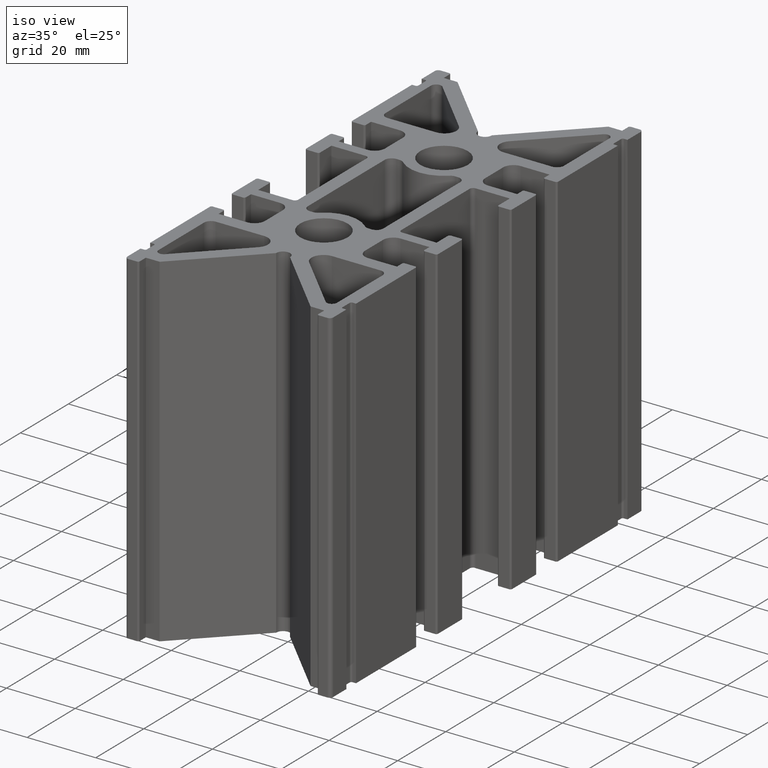
[diagram: clean part render]
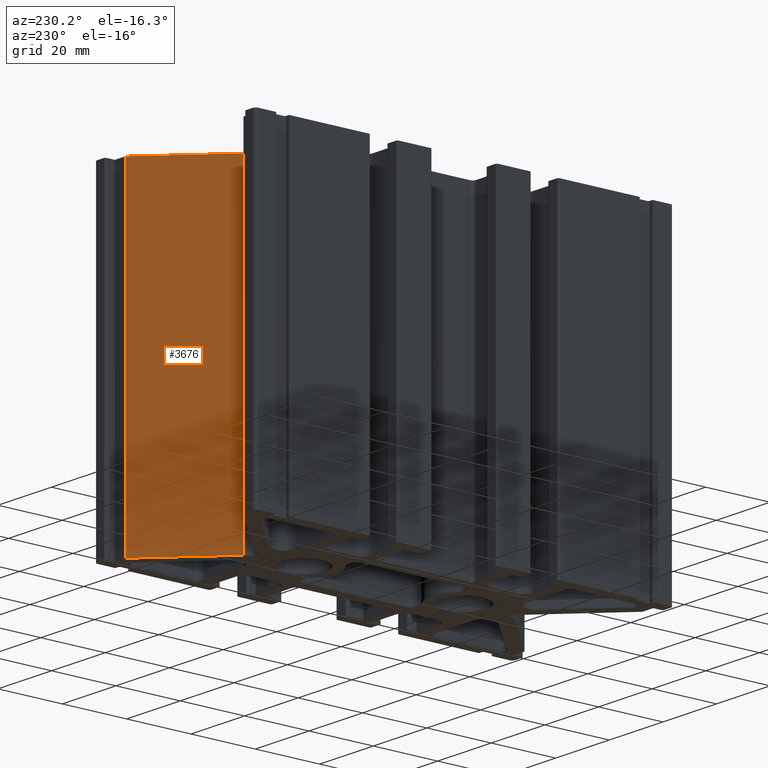
[diagram: tour spotlight — one face highlighted and labeled with its STEP entity id]
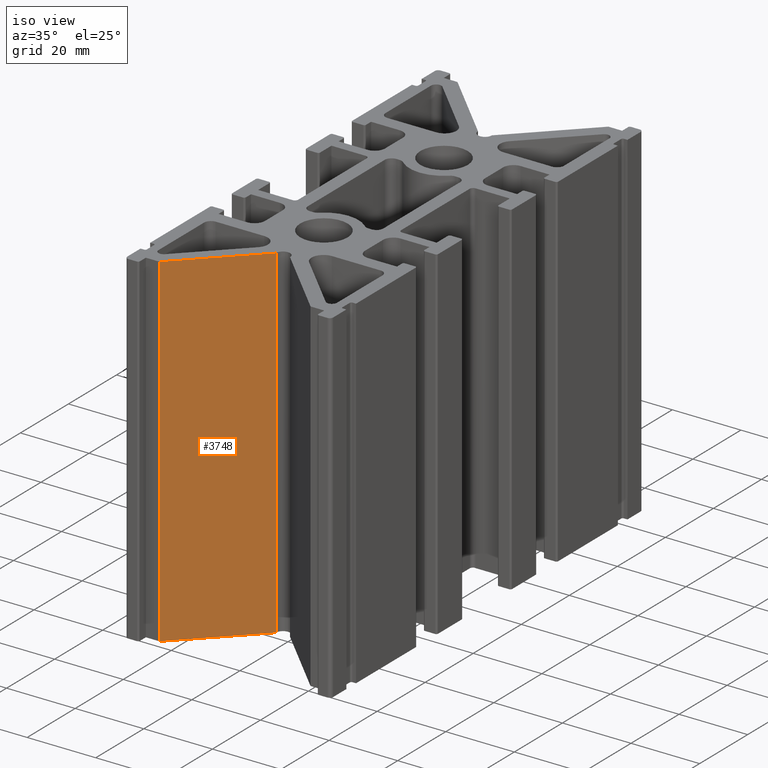
[diagram: tour spotlight — one face highlighted and labeled with its STEP entity id]
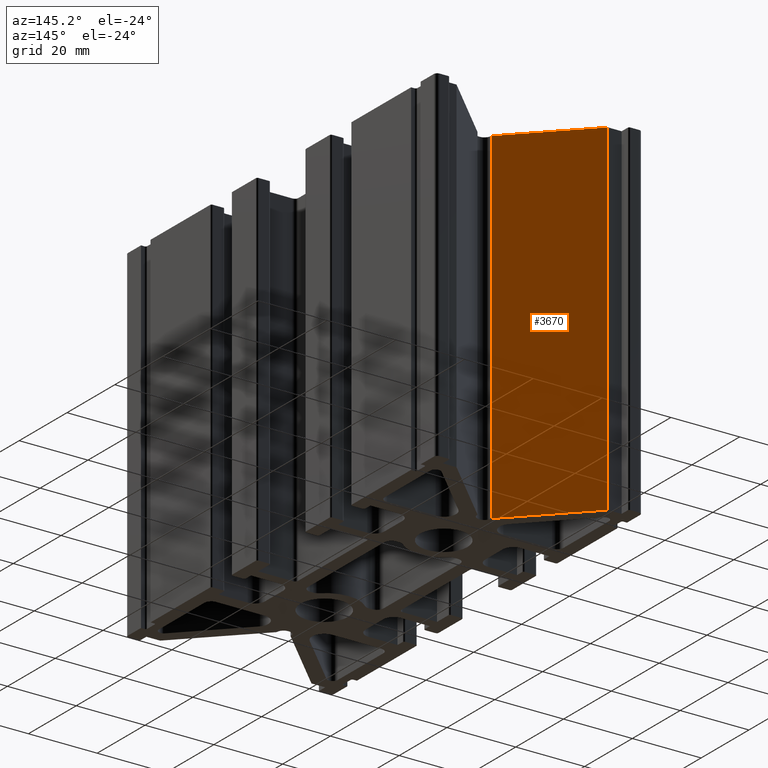
[diagram: tour spotlight — one face highlighted and labeled with its STEP entity id]
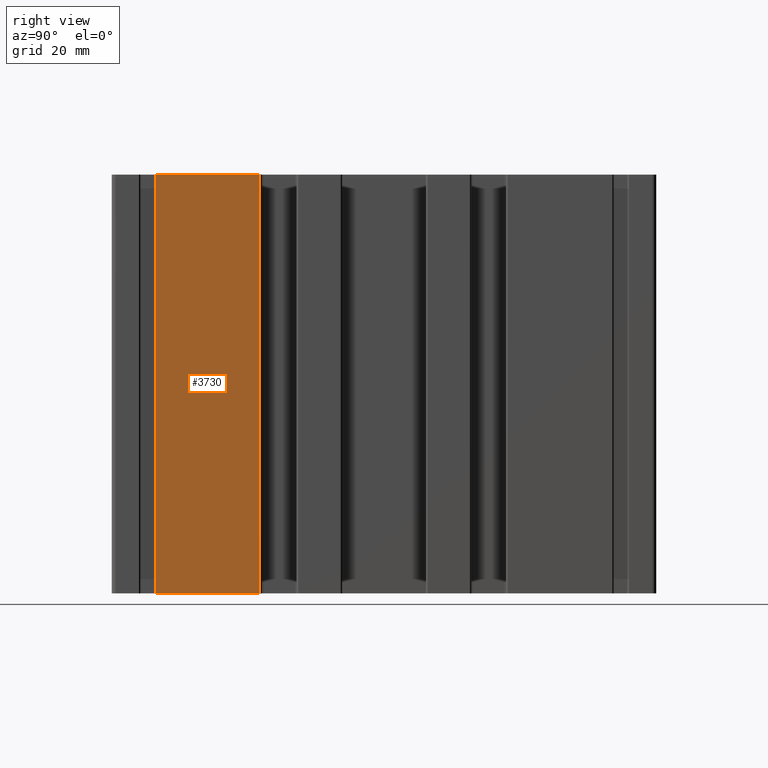
[diagram: tour spotlight — one face highlighted and labeled with its STEP entity id]
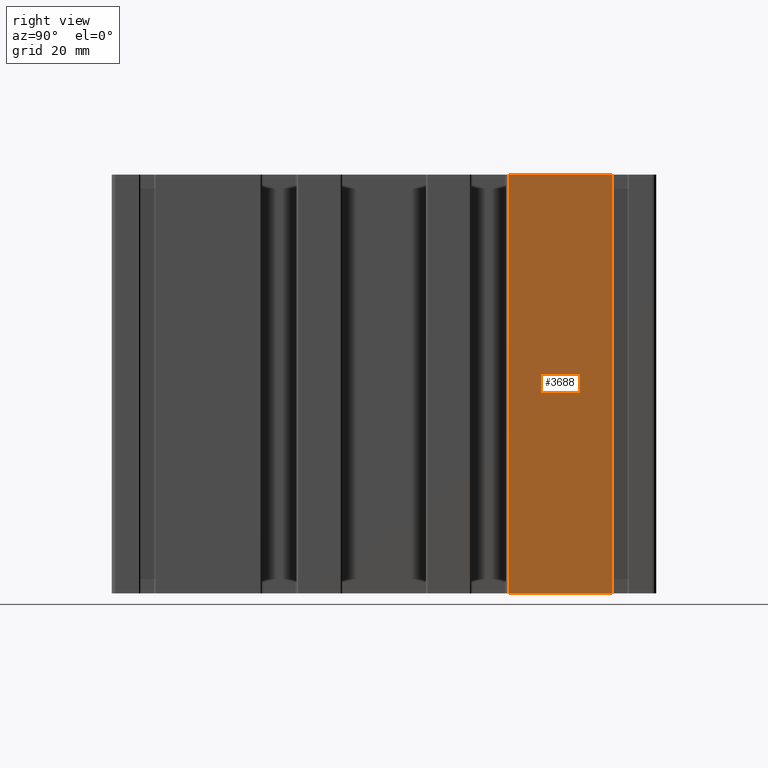
[diagram: tour spotlight — one face highlighted and labeled with its STEP entity id]
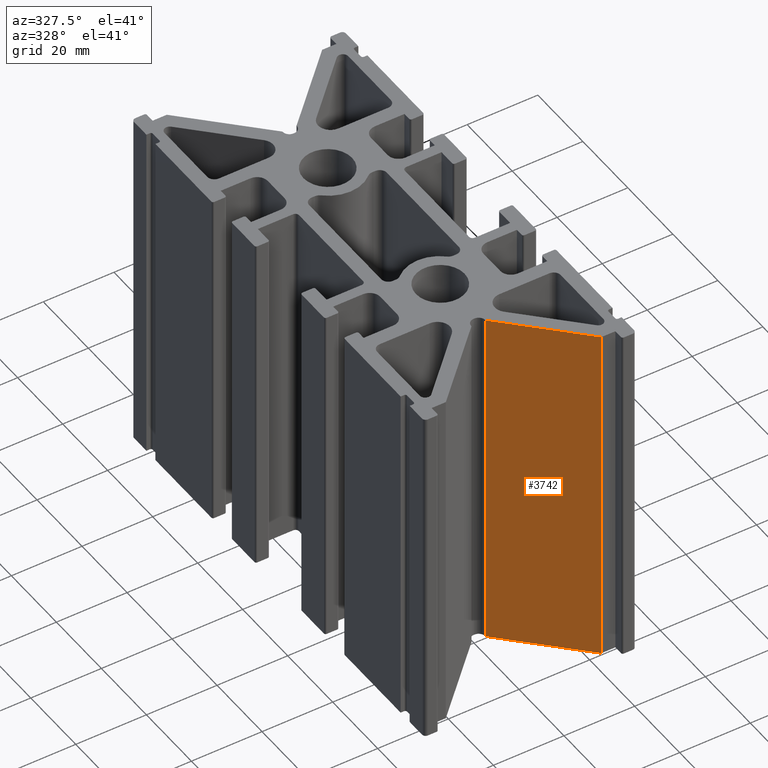
[diagram: tour spotlight — one face highlighted and labeled with its STEP entity id]
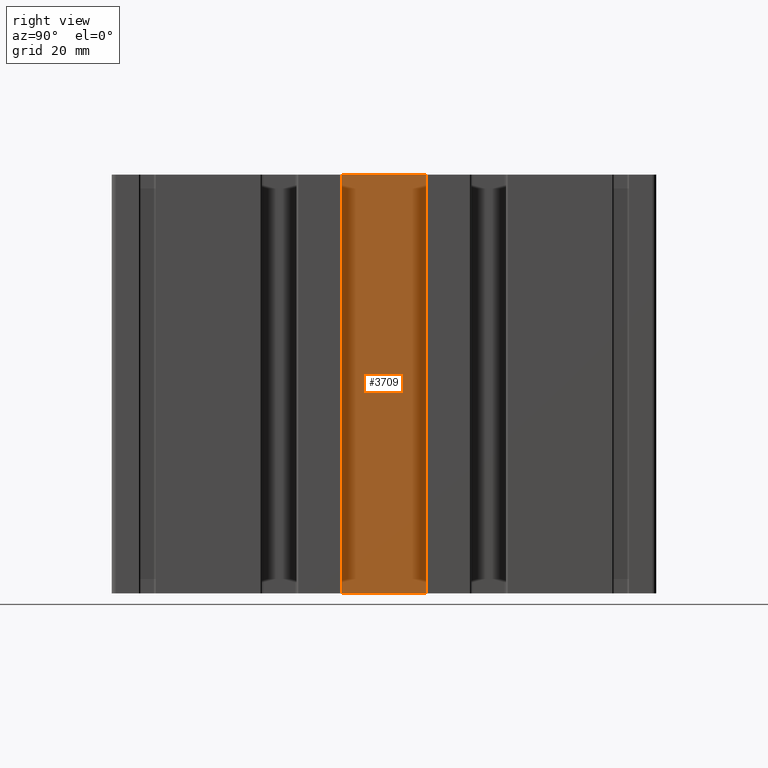
[diagram: tour spotlight — one face highlighted and labeled with its STEP entity id]
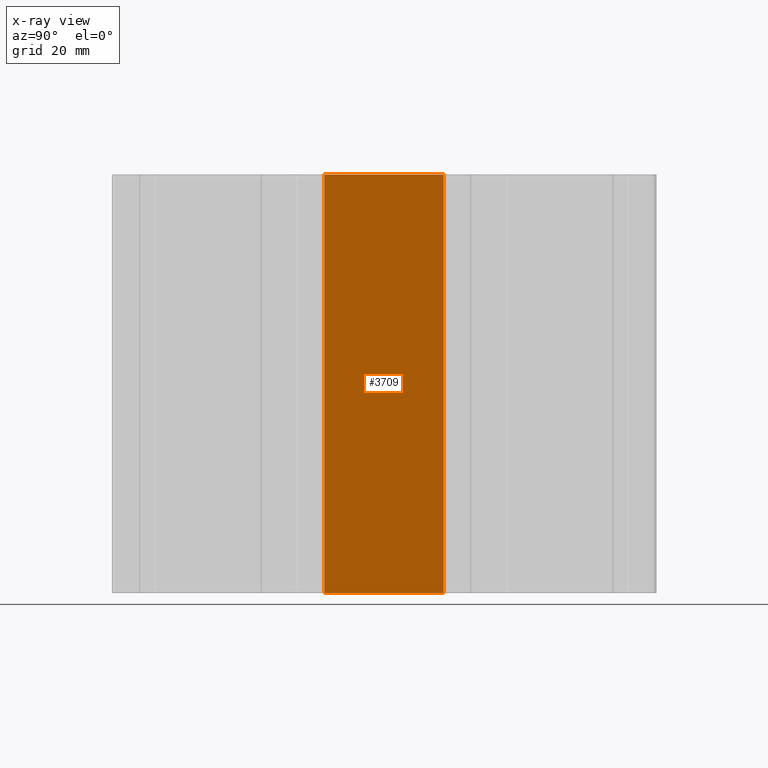
[diagram: x-ray of the same camera — body ghosted, this tour face saturated]
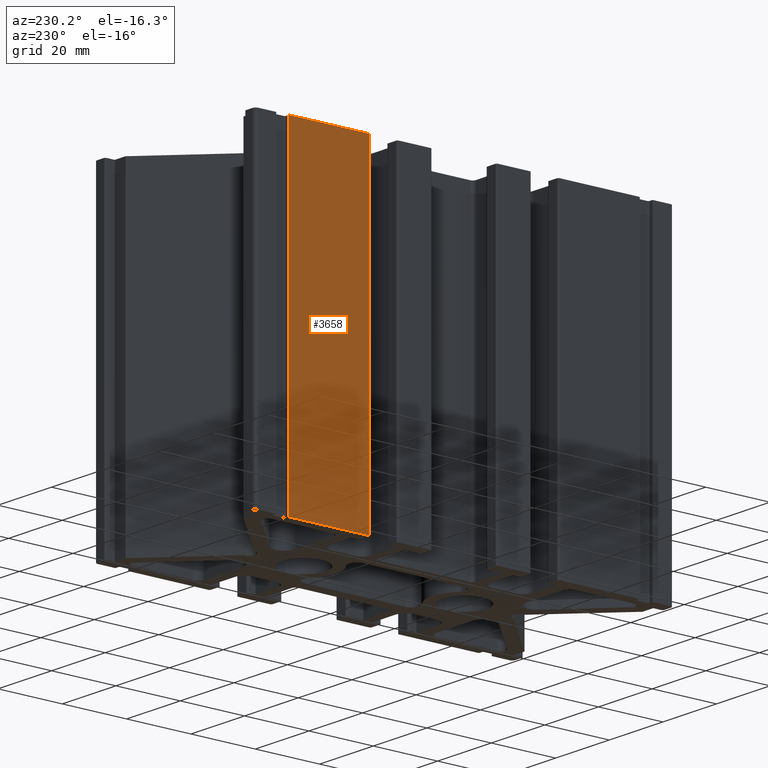
[diagram: tour spotlight — one face highlighted and labeled with its STEP entity id]
A machine part: a face-by-face anatomy tour. The part has 188 B-rep faces; the first image is the clean iso view, then the 8 largest visible faces are spotlighted one at a time (largest first), each with its STEP entity span.

Face 1 — auxiliary view, entity #3676. In plain terms, the highlighted planar face has unit normal (-0.7071, 0.7071, 0).
Definition (entity closure, byte-faithful):
#63=PLANE('',#4000);
#204=FACE_OUTER_BOUND('',#399,.T.);
#399=EDGE_LOOP('',(#2863,#2864,#2865,#2866));
#781=LINE('',#5570,#1179);
#892=LINE('',#5903,#1290);
#893=LINE('',#5906,#1291);
#894=LINE('',#5907,#1292);
#1179=VECTOR('',#4464,10.);
#1290=VECTOR('',#4735,10.);
#1291=VECTOR('',#4738,10.);
#1292=VECTOR('',#4739,10.);
#1592=VERTEX_POINT('',#5567);
#1593=VERTEX_POINT('',#5569);
#1735=VERTEX_POINT('',#5901);
#1736=VERTEX_POINT('',#5905);
#2006=EDGE_CURVE('',#1592,#1593,#781,.T.);
#2173=EDGE_CURVE('',#1592,#1735,#892,.T.);
#2174=EDGE_CURVE('',#1736,#1735,#893,.T.);
#2175=EDGE_CURVE('',#1593,#1736,#894,.T.);
#2863=ORIENTED_EDGE('',*,*,#2173,.T.);
#2864=ORIENTED_EDGE('',*,*,#2174,.F.);
#2865=ORIENTED_EDGE('',*,*,#2175,.F.);
#2866=ORIENTED_EDGE('',*,*,#2006,.F.);
#3676=ADVANCED_FACE('',(#204),#63,.T.);
#4000=AXIS2_PLACEMENT_3D('',#5904,#4736,#4737);
#4464=DIRECTION('',(0.70710678118654,0.707106781186555,0.));
#4735=DIRECTION('',(0.,0.,1.));
#4736=DIRECTION('center_axis',(-0.707106781186555,0.70710678118654,0.));
#4737=DIRECTION('ref_axis',(-0.70710678118654,-0.707106781186555,0.));
#4738=DIRECTION('',(-0.70710678118654,-0.707106781186555,0.));
#4739=DIRECTION('',(0.,0.,1.));
#5567=CARTESIAN_POINT('',(2.00000000000031,42.0000000000036,-50.));
#5569=CARTESIAN_POINT('',(21.9999999999955,61.9999999999992,-50.));
#5570=CARTESIAN_POINT('',(21.9999999999955,61.9999999999992,-50.));
#5901=CARTESIAN_POINT('',(2.00000000000031,42.0000000000036,50.));
#5903=CARTESIAN_POINT('',(2.00000000000031,42.0000000000036,0.));
#5904=CARTESIAN_POINT('Origin',(21.9999999999955,61.9999999999992,0.));
#5905=CARTESIAN_POINT('',(21.9999999999955,61.9999999999992,50.));
#5906=CARTESIAN_POINT('',(21.9999999999955,61.9999999999992,50.));
#5907=CARTESIAN_POINT('',(21.9999999999955,61.9999999999992,0.));

Face 2 — iso view, entity #3748. In plain terms, the highlighted planar face has unit normal (0.7071, -0.7071, 0).
Definition (entity closure, byte-faithful):
#107=PLANE('',#4100);
#276=FACE_OUTER_BOUND('',#471,.T.);
#471=EDGE_LOOP('',(#3151,#3152,#3153,#3154));
#825=LINE('',#5714,#1223);
#1008=LINE('',#6191,#1406);
#1009=LINE('',#6194,#1407);
#1010=LINE('',#6195,#1408);
#1223=VECTOR('',#4564,10.);
#1406=VECTOR('',#5051,10.);
#1407=VECTOR('',#5054,10.);
#1408=VECTOR('',#5055,10.);
#1664=VERTEX_POINT('',#5711);
#1665=VERTEX_POINT('',#5713);
#1807=VERTEX_POINT('',#6189);
#1808=VERTEX_POINT('',#6193);
#2078=EDGE_CURVE('',#1664,#1665,#825,.T.);
#2317=EDGE_CURVE('',#1664,#1807,#1008,.T.);
#2318=EDGE_CURVE('',#1808,#1807,#1009,.T.);
#2319=EDGE_CURVE('',#1665,#1808,#1010,.T.);
#3151=ORIENTED_EDGE('',*,*,#2317,.T.);
#3152=ORIENTED_EDGE('',*,*,#2318,.F.);
#3153=ORIENTED_EDGE('',*,*,#2319,.F.);
#3154=ORIENTED_EDGE('',*,*,#2078,.F.);
#3748=ADVANCED_FACE('',(#276),#107,.T.);
#4100=AXIS2_PLACEMENT_3D('',#6192,#5052,#5053);
#4564=DIRECTION('',(-0.707106781186538,-0.707106781186557,0.));
#5051=DIRECTION('',(0.,0.,1.));
#5052=DIRECTION('center_axis',(0.707106781186557,-0.707106781186538,0.));
#5053=DIRECTION('ref_axis',(0.707106781186538,0.707106781186557,0.));
#5054=DIRECTION('',(0.707106781186538,0.707106781186557,0.));
#5055=DIRECTION('',(0.,0.,1.));
#5711=CARTESIAN_POINT('',(-1.9999999999996,-41.9999999999975,-50.));
#5713=CARTESIAN_POINT('',(-22.0000000000026,-62.000000000001,-50.));
#5714=CARTESIAN_POINT('',(-22.0000000000026,-62.000000000001,-50.));
#6189=CARTESIAN_POINT('',(-1.9999999999996,-41.9999999999975,50.));
#6191=CARTESIAN_POINT('',(-1.9999999999996,-41.9999999999975,0.));
#6192=CARTESIAN_POINT('Origin',(-22.0000000000026,-62.000000000001,0.));
#6193=CARTESIAN_POINT('',(-22.0000000000026,-62.000000000001,50.));
#6194=CARTESIAN_POINT('',(-22.0000000000026,-62.000000000001,50.));
#6195=CARTESIAN_POINT('',(-22.0000000000026,-62.000000000001,0.));

Face 3 — auxiliary view, entity #3670. In plain terms, the highlighted planar face has unit normal (0.7071, 0.7071, 0).
Definition (entity closure, byte-faithful):
#59=PLANE('',#3992);
#198=FACE_OUTER_BOUND('',#393,.T.);
#393=EDGE_LOOP('',(#2839,#2840,#2841,#2842));
#777=LINE('',#5558,#1175);
#882=LINE('',#5879,#1280);
#883=LINE('',#5882,#1281);
#884=LINE('',#5883,#1282);
#1175=VECTOR('',#4456,10.);
#1280=VECTOR('',#4709,10.);
#1281=VECTOR('',#4712,10.);
#1282=VECTOR('',#4713,10.);
#1586=VERTEX_POINT('',#5555);
#1587=VERTEX_POINT('',#5557);
#1729=VERTEX_POINT('',#5877);
#1730=VERTEX_POINT('',#5881);
#2000=EDGE_CURVE('',#1586,#1587,#777,.T.);
#2161=EDGE_CURVE('',#1586,#1729,#882,.T.);
#2162=EDGE_CURVE('',#1730,#1729,#883,.T.);
#2163=EDGE_CURVE('',#1587,#1730,#884,.T.);
#2839=ORIENTED_EDGE('',*,*,#2161,.T.);
#2840=ORIENTED_EDGE('',*,*,#2162,.F.);
#2841=ORIENTED_EDGE('',*,*,#2163,.F.);
#2842=ORIENTED_EDGE('',*,*,#2000,.F.);
#3670=ADVANCED_FACE('',(#198),#59,.T.);
#3992=AXIS2_PLACEMENT_3D('',#5880,#4710,#4711);
#4456=DIRECTION('',(0.707106781186554,-0.707106781186541,0.));
#4709=DIRECTION('',(0.,0.,1.));
#4710=DIRECTION('center_axis',(0.707106781186541,0.707106781186554,0.));
#4711=DIRECTION('ref_axis',(-0.707106781186554,0.707106781186541,0.));
#4712=DIRECTION('',(-0.707106781186554,0.707106781186541,0.));
#4713=DIRECTION('',(0.,0.,1.));
#5555=CARTESIAN_POINT('',(-22.0000000000059,61.9999999999991,-50.));
#5557=CARTESIAN_POINT('',(-1.9999999999996,41.9999999999932,-50.));
#5558=CARTESIAN_POINT('',(-1.9999999999996,41.9999999999932,-50.));
#5877=CARTESIAN_POINT('',(-22.0000000000059,61.9999999999991,50.));
#5879=CARTESIAN_POINT('',(-22.0000000000059,61.9999999999991,0.));
#5880=CARTESIAN_POINT('Origin',(-1.9999999999996,41.9999999999932,0.));
#5881=CARTESIAN_POINT('',(-1.9999999999996,41.9999999999932,50.));
#5882=CARTESIAN_POINT('',(-1.9999999999996,41.9999999999932,50.));
#5883=CARTESIAN_POINT('',(-1.9999999999996,41.9999999999932,0.));

Face 4 — right view, entity #3730. In plain terms, the highlighted planar face has unit normal (1, 0, 0).
Definition (entity closure, byte-faithful):
#95=PLANE('',#4076);
#258=FACE_OUTER_BOUND('',#453,.T.);
#453=EDGE_LOOP('',(#3079,#3080,#3081,#3082));
#813=LINE('',#5678,#1211);
#978=LINE('',#6119,#1376);
#979=LINE('',#6122,#1377);
#980=LINE('',#6123,#1378);
#1211=VECTOR('',#4540,10.);
#1376=VECTOR('',#4973,10.);
#1377=VECTOR('',#4976,10.);
#1378=VECTOR('',#4977,10.);
#1646=VERTEX_POINT('',#5675);
#1647=VERTEX_POINT('',#5677);
#1789=VERTEX_POINT('',#6117);
#1790=VERTEX_POINT('',#6121);
#2060=EDGE_CURVE('',#1646,#1647,#813,.T.);
#2281=EDGE_CURVE('',#1646,#1789,#978,.T.);
#2282=EDGE_CURVE('',#1790,#1789,#979,.T.);
#2283=EDGE_CURVE('',#1647,#1790,#980,.T.);
#3079=ORIENTED_EDGE('',*,*,#2281,.T.);
#3080=ORIENTED_EDGE('',*,*,#2282,.F.);
#3081=ORIENTED_EDGE('',*,*,#2283,.F.);
#3082=ORIENTED_EDGE('',*,*,#2060,.F.);
#3730=ADVANCED_FACE('',(#258),#95,.T.);
#4076=AXIS2_PLACEMENT_3D('',#6120,#4974,#4975);
#4540=DIRECTION('',(0.,-1.,0.));
#4973=DIRECTION('',(0.,0.,1.));
#4974=DIRECTION('center_axis',(1.,0.,0.));
#4975=DIRECTION('ref_axis',(0.,1.,0.));
#4976=DIRECTION('',(0.,1.,0.));
#4977=DIRECTION('',(0.,0.,1.));
#5675=CARTESIAN_POINT('',(29.9999999999963,-29.6499999999997,-50.));
#5677=CARTESIAN_POINT('',(29.9999999999963,-54.4999999999998,-50.));
#5678=CARTESIAN_POINT('',(29.9999999999963,-54.4999999999998,-50.));
#6117=CARTESIAN_POINT('',(29.9999999999963,-29.6499999999997,50.));
#6119=CARTESIAN_POINT('',(29.9999999999963,-29.6499999999997,0.));
#6120=CARTESIAN_POINT('Origin',(29.9999999999963,-54.4999999999998,0.));
#6121=CARTESIAN_POINT('',(29.9999999999963,-54.4999999999998,50.));
#6122=CARTESIAN_POINT('',(29.9999999999963,-54.4999999999998,50.));
#6123=CARTESIAN_POINT('',(29.9999999999963,-54.4999999999998,0.));

Face 5 — right view, entity #3688. In plain terms, the highlighted planar face has unit normal (1, 0, 0).
Definition (entity closure, byte-faithful):
#71=PLANE('',#4016);
#216=FACE_OUTER_BOUND('',#411,.T.);
#411=EDGE_LOOP('',(#2911,#2912,#2913,#2914));
#789=LINE('',#5594,#1187);
#912=LINE('',#5951,#1310);
#913=LINE('',#5954,#1311);
#914=LINE('',#5955,#1312);
#1187=VECTOR('',#4480,10.);
#1310=VECTOR('',#4787,10.);
#1311=VECTOR('',#4790,10.);
#1312=VECTOR('',#4791,10.);
#1604=VERTEX_POINT('',#5591);
#1605=VERTEX_POINT('',#5593);
#1747=VERTEX_POINT('',#5949);
#1748=VERTEX_POINT('',#5953);
#2018=EDGE_CURVE('',#1604,#1605,#789,.T.);
#2197=EDGE_CURVE('',#1604,#1747,#912,.T.);
#2198=EDGE_CURVE('',#1748,#1747,#913,.T.);
#2199=EDGE_CURVE('',#1605,#1748,#914,.T.);
#2911=ORIENTED_EDGE('',*,*,#2197,.T.);
#2912=ORIENTED_EDGE('',*,*,#2198,.F.);
#2913=ORIENTED_EDGE('',*,*,#2199,.F.);
#2914=ORIENTED_EDGE('',*,*,#2018,.F.);
#3688=ADVANCED_FACE('',(#216),#71,.T.);
#4016=AXIS2_PLACEMENT_3D('',#5952,#4788,#4789);
#4480=DIRECTION('',(0.,-1.,0.));
#4787=DIRECTION('',(0.,0.,1.));
#4788=DIRECTION('center_axis',(1.,0.,0.));
#4789=DIRECTION('ref_axis',(0.,1.,0.));
#4790=DIRECTION('',(0.,1.,0.));
#4791=DIRECTION('',(0.,0.,1.));
#5591=CARTESIAN_POINT('',(29.9999999999963,54.5000000000005,-50.));
#5593=CARTESIAN_POINT('',(29.9999999999963,29.65,-50.));
#5594=CARTESIAN_POINT('',(29.9999999999963,29.65,-50.));
#5949=CARTESIAN_POINT('',(29.9999999999963,54.5000000000005,50.));
#5951=CARTESIAN_POINT('',(29.9999999999963,54.5000000000005,0.));
#5952=CARTESIAN_POINT('Origin',(29.9999999999963,29.65,0.));
#5953=CARTESIAN_POINT('',(29.9999999999963,29.65,50.));
#5954=CARTESIAN_POINT('',(29.9999999999963,29.65,50.));
#5955=CARTESIAN_POINT('',(29.9999999999963,29.65,0.));

Face 6 — auxiliary view, entity #3742. In plain terms, the highlighted planar face has unit normal (-0.7071, -0.7071, 0).
Definition (entity closure, byte-faithful):
#103=PLANE('',#4092);
#270=FACE_OUTER_BOUND('',#465,.T.);
#465=EDGE_LOOP('',(#3127,#3128,#3129,#3130));
#821=LINE('',#5702,#1219);
#998=LINE('',#6167,#1396);
#999=LINE('',#6170,#1397);
#1000=LINE('',#6171,#1398);
#1219=VECTOR('',#4556,10.);
#1396=VECTOR('',#5025,10.);
#1397=VECTOR('',#5028,10.);
#1398=VECTOR('',#5029,10.);
#1658=VERTEX_POINT('',#5699);
#1659=VERTEX_POINT('',#5701);
#1801=VERTEX_POINT('',#6165);
#1802=VERTEX_POINT('',#6169);
#2072=EDGE_CURVE('',#1658,#1659,#821,.T.);
#2305=EDGE_CURVE('',#1658,#1801,#998,.T.);
#2306=EDGE_CURVE('',#1802,#1801,#999,.T.);
#2307=EDGE_CURVE('',#1659,#1802,#1000,.T.);
#3127=ORIENTED_EDGE('',*,*,#2305,.T.);
#3128=ORIENTED_EDGE('',*,*,#2306,.F.);
#3129=ORIENTED_EDGE('',*,*,#2307,.F.);
#3130=ORIENTED_EDGE('',*,*,#2072,.F.);
#3742=ADVANCED_FACE('',(#270),#103,.T.);
#4092=AXIS2_PLACEMENT_3D('',#6168,#5026,#5027);
#4556=DIRECTION('',(-0.707106781186558,0.707106781186537,0.));
#5025=DIRECTION('',(0.,0.,1.));
#5026=DIRECTION('center_axis',(-0.707106781186537,-0.707106781186558,0.));
#5027=DIRECTION('ref_axis',(0.707106781186558,-0.707106781186537,0.));
#5028=DIRECTION('',(0.707106781186558,-0.707106781186537,0.));
#5029=DIRECTION('',(0.,0.,1.));
#5699=CARTESIAN_POINT('',(21.9999999999965,-62.0000000000013,-50.));
#5701=CARTESIAN_POINT('',(2.00000000000031,-42.0000000000057,-50.));
#5702=CARTESIAN_POINT('',(2.00000000000031,-42.0000000000057,-50.));
#6165=CARTESIAN_POINT('',(21.9999999999965,-62.0000000000013,50.));
#6167=CARTESIAN_POINT('',(21.9999999999965,-62.0000000000013,0.));
#6168=CARTESIAN_POINT('Origin',(2.00000000000031,-42.0000000000057,0.));
#6169=CARTESIAN_POINT('',(2.00000000000031,-42.0000000000057,50.));
#6170=CARTESIAN_POINT('',(2.00000000000031,-42.0000000000057,50.));
#6171=CARTESIAN_POINT('',(2.00000000000031,-42.0000000000057,0.));

Face 7 — right view, entity #3709. An x-ray twin of the same camera follows (body ghosted, this face saturated) — the face is partly hidden behind the body. In plain terms, the highlighted planar face has unit normal (1, 0, 0).
Definition (entity closure, byte-faithful):
#83=PLANE('',#4046);
#237=FACE_OUTER_BOUND('',#432,.T.);
#432=EDGE_LOOP('',(#2995,#2996,#2997,#2998));
#801=LINE('',#5636,#1199);
#945=LINE('',#6035,#1343);
#946=LINE('',#6038,#1344);
#947=LINE('',#6039,#1345);
#1199=VECTOR('',#4510,10.);
#1343=VECTOR('',#4880,10.);
#1344=VECTOR('',#4883,10.);
#1345=VECTOR('',#4884,10.);
#1625=VERTEX_POINT('',#5633);
#1626=VERTEX_POINT('',#5635);
#1768=VERTEX_POINT('',#6033);
#1769=VERTEX_POINT('',#6037);
#2039=EDGE_CURVE('',#1625,#1626,#801,.T.);
#2239=EDGE_CURVE('',#1625,#1768,#945,.T.);
#2240=EDGE_CURVE('',#1769,#1768,#946,.T.);
#2241=EDGE_CURVE('',#1626,#1769,#947,.T.);
#2995=ORIENTED_EDGE('',*,*,#2239,.T.);
#2996=ORIENTED_EDGE('',*,*,#2240,.F.);
#2997=ORIENTED_EDGE('',*,*,#2241,.F.);
#2998=ORIENTED_EDGE('',*,*,#2039,.F.);
#3709=ADVANCED_FACE('',(#237),#83,.T.);
#4046=AXIS2_PLACEMENT_3D('',#6036,#4881,#4882);
#4510=DIRECTION('',(0.,-1.,0.));
#4880=DIRECTION('',(0.,0.,1.));
#4881=DIRECTION('center_axis',(1.,0.,0.));
#4882=DIRECTION('ref_axis',(0.,1.,0.));
#4883=DIRECTION('',(0.,1.,0.));
#4884=DIRECTION('',(0.,0.,1.));
#5633=CARTESIAN_POINT('',(14.9999999999983,14.25,-50.));
#5635=CARTESIAN_POINT('',(14.9999999999983,-14.25,-50.));
#5636=CARTESIAN_POINT('',(14.9999999999983,-14.25,-50.));
#6033=CARTESIAN_POINT('',(14.9999999999983,14.25,50.));
#6035=CARTESIAN_POINT('',(14.9999999999983,14.25,0.));
#6036=CARTESIAN_POINT('Origin',(14.9999999999983,-14.25,0.));
#6037=CARTESIAN_POINT('',(14.9999999999983,-14.25,50.));
#6038=CARTESIAN_POINT('',(14.9999999999983,-14.25,50.));
#6039=CARTESIAN_POINT('',(14.9999999999983,-14.25,0.));

Face 8 — auxiliary view, entity #3658. In plain terms, the highlighted planar face has unit normal (-1, 0, 0).
Definition (entity closure, byte-faithful):
#51=PLANE('',#3976);
#186=FACE_OUTER_BOUND('',#381,.T.);
#381=EDGE_LOOP('',(#2791,#2792,#2793,#2794));
#769=LINE('',#5534,#1167);
#862=LINE('',#5831,#1260);
#863=LINE('',#5834,#1261);
#864=LINE('',#5835,#1262);
#1167=VECTOR('',#4440,10.);
#1260=VECTOR('',#4657,10.);
#1261=VECTOR('',#4660,10.);
#1262=VECTOR('',#4661,10.);
#1574=VERTEX_POINT('',#5531);
#1575=VERTEX_POINT('',#5533);
#1717=VERTEX_POINT('',#5829);
#1718=VERTEX_POINT('',#5833);
#1988=EDGE_CURVE('',#1574,#1575,#769,.T.);
#2137=EDGE_CURVE('',#1574,#1717,#862,.T.);
#2138=EDGE_CURVE('',#1718,#1717,#863,.T.);
#2139=EDGE_CURVE('',#1575,#1718,#864,.T.);
#2791=ORIENTED_EDGE('',*,*,#2137,.T.);
#2792=ORIENTED_EDGE('',*,*,#2138,.F.);
#2793=ORIENTED_EDGE('',*,*,#2139,.F.);
#2794=ORIENTED_EDGE('',*,*,#1988,.F.);
#3658=ADVANCED_FACE('',(#186),#51,.T.);
#3976=AXIS2_PLACEMENT_3D('',#5832,#4658,#4659);
#4440=DIRECTION('',(0.,1.,0.));
#4657=DIRECTION('',(0.,0.,1.));
#4658=DIRECTION('center_axis',(-1.,0.,0.));
#4659=DIRECTION('ref_axis',(0.,-1.,0.));
#4660=DIRECTION('',(0.,-1.,0.));
#4661=DIRECTION('',(0.,0.,1.));
#5531=CARTESIAN_POINT('',(-30.0000000000036,29.65,-50.));
#5533=CARTESIAN_POINT('',(-30.0000000000036,54.5000000000004,-50.));
#5534=CARTESIAN_POINT('',(-30.0000000000036,54.5000000000004,-50.));
#5829=CARTESIAN_POINT('',(-30.0000000000036,29.65,50.));
#5831=CARTESIAN_POINT('',(-30.0000000000036,29.65,0.));
#5832=CARTESIAN_POINT('Origin',(-30.0000000000036,54.5000000000004,0.));
#5833=CARTESIAN_POINT('',(-30.0000000000036,54.5000000000004,50.));
#5834=CARTESIAN_POINT('',(-30.0000000000036,54.5000000000004,50.));
#5835=CARTESIAN_POINT('',(-30.0000000000036,54.5000000000004,0.));